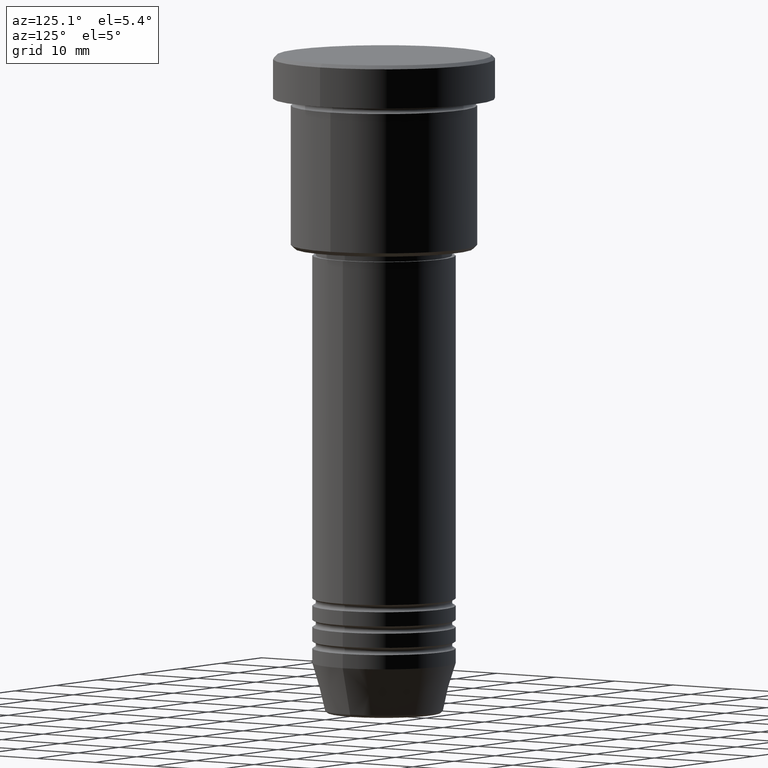
[diagram: clean part render]
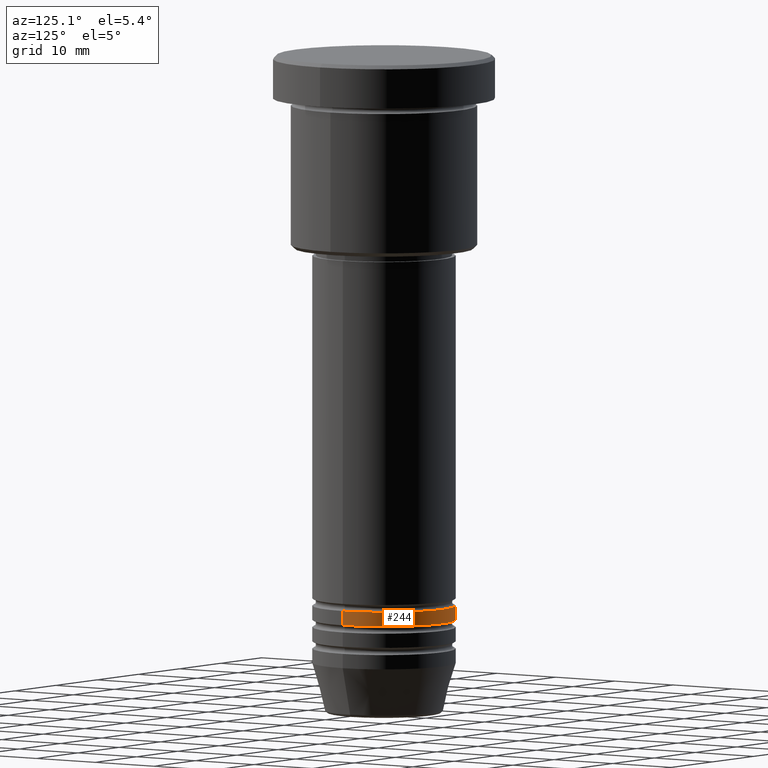
[diagram: same view with one face highlighted and labeled with its STEP entity id]
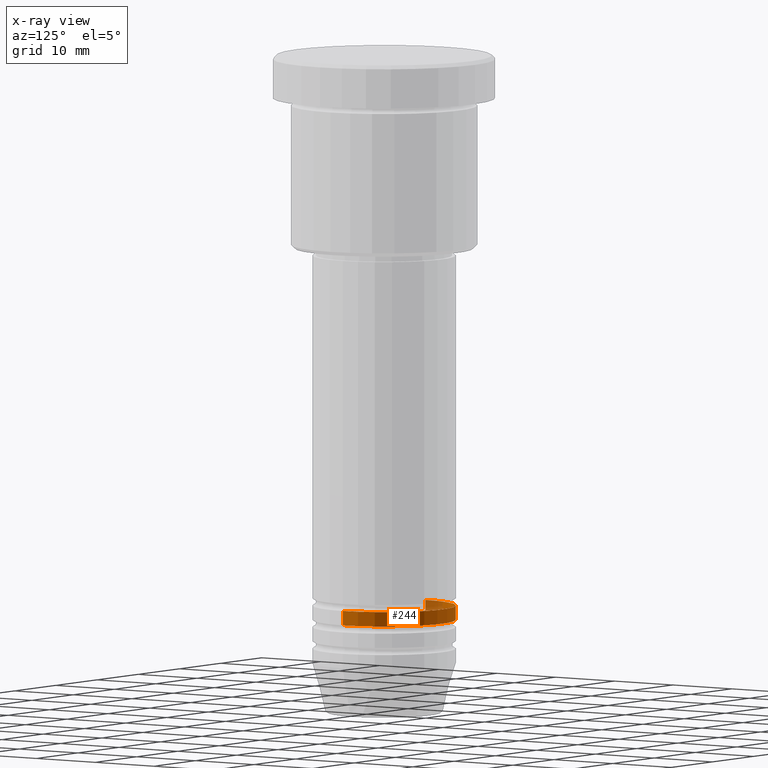
[diagram: x-ray of the same camera — body ghosted, the highlighted face saturated]
A machine part, auxiliary view. The second image highlights one B-rep face of the part: STEP entity #244.
The next image is the same camera in x-ray: the body ghosted, the highlighted face saturated — about 9% of this face is hidden behind the body in this view.
In plain terms, the highlighted cylindrical surface (partial cylindrical patch) has radius 10 mm, axis along (-0, -0, 1).
Its self-contained STEP definition (entity closure, byte-faithful):
#3 = CARTESIAN_POINT ( 'NONE',  ( 0.000000000000000000, 0.000000000000000000, -78.99999999999997158 ) ) ;
#19 = EDGE_LOOP ( 'NONE', ( #936, #391, #314, #404 ) ) ;
#40 = CARTESIAN_POINT ( 'NONE',  ( 10.00000000000000000, 0.000000000000000000, -76.99999999999997158 ) ) ;
#57 = VERTEX_POINT ( 'NONE', #1091 ) ;
#71 = DIRECTION ( 'NONE',  ( -0.000000000000000000, -0.000000000000000000, 1.000000000000000000 ) ) ;
#75 = DIRECTION ( 'NONE',  ( 1.000000000000000000, 0.000000000000000000, 0.000000000000000000 ) ) ;
#160 = CARTESIAN_POINT ( 'NONE',  ( 10.00000000000000000, 0.000000000000000000, 0.000000000000000000 ) ) ;
#169 = LINE ( 'NONE', #160, #627 ) ;
#244 = ADVANCED_FACE ( 'NONE', ( #521 ), #261, .T. ) ;
#261 = CYLINDRICAL_SURFACE ( 'NONE', #324, 10.00000000000000000 ) ;
#314 = ORIENTED_EDGE ( 'NONE', *, *, #914, .F. ) ;
#324 = AXIS2_PLACEMENT_3D ( 'NONE', #981, #71, #700 ) ;
#356 = CARTESIAN_POINT ( 'NONE',  ( -10.00000000000000000, 1.224646799147353256E-15, 0.000000000000000000 ) ) ;
#391 = ORIENTED_EDGE ( 'NONE', *, *, #939, .T. ) ;
#404 = ORIENTED_EDGE ( 'NONE', *, *, #1145, .F. ) ;
#412 = EDGE_CURVE ( 'NONE', #919, #57, #604, .T. ) ;
#431 = VERTEX_POINT ( 'NONE', #922 ) ;
#521 = FACE_OUTER_BOUND ( 'NONE', #19, .T. ) ;
#555 = DIRECTION ( 'NONE',  ( -0.000000000000000000, -0.000000000000000000, 1.000000000000000000 ) ) ;
#586 = CIRCLE ( 'NONE', #951, 10.00000000000000000 ) ;
#604 = CIRCLE ( 'NONE', #711, 10.00000000000000000 ) ;
#627 = VECTOR ( 'NONE', #888, 1000.000000000000000 ) ;
#661 = DIRECTION ( 'NONE',  ( 1.000000000000000000, 0.000000000000000000, 0.000000000000000000 ) ) ;
#679 = VECTOR ( 'NONE', #1176, 1000.000000000000000 ) ;
#700 = DIRECTION ( 'NONE',  ( 1.000000000000000000, 0.000000000000000000, 0.000000000000000000 ) ) ;
#711 = AXIS2_PLACEMENT_3D ( 'NONE', #3, #555, #661 ) ;
#888 = DIRECTION ( 'NONE',  ( -0.000000000000000000, -0.000000000000000000, 1.000000000000000000 ) ) ;
#904 = CARTESIAN_POINT ( 'NONE',  ( 10.00000000000000000, 0.000000000000000000, -78.99999999999997158 ) ) ;
#914 = EDGE_CURVE ( 'NONE', #1012, #431, #586, .T. ) ;
#919 = VERTEX_POINT ( 'NONE', #904 ) ;
#922 = CARTESIAN_POINT ( 'NONE',  ( -10.00000000000000000, 1.224646799147353256E-15, -76.99999999999997158 ) ) ;
#936 = ORIENTED_EDGE ( 'NONE', *, *, #412, .T. ) ;
#939 = EDGE_CURVE ( 'NONE', #57, #431, #1094, .T. ) ;
#951 = AXIS2_PLACEMENT_3D ( 'NONE', #1081, #1007, #75 ) ;
#981 = CARTESIAN_POINT ( 'NONE',  ( 0.000000000000000000, 0.000000000000000000, 0.000000000000000000 ) ) ;
#1007 = DIRECTION ( 'NONE',  ( -0.000000000000000000, -0.000000000000000000, 1.000000000000000000 ) ) ;
#1012 = VERTEX_POINT ( 'NONE', #40 ) ;
#1081 = CARTESIAN_POINT ( 'NONE',  ( 0.000000000000000000, 0.000000000000000000, -76.99999999999997158 ) ) ;
#1091 = CARTESIAN_POINT ( 'NONE',  ( -10.00000000000000000, 1.224646799147353256E-15, -78.99999999999997158 ) ) ;
#1094 = LINE ( 'NONE', #356, #679 ) ;
#1145 = EDGE_CURVE ( 'NONE', #919, #1012, #169, .T. ) ;
#1176 = DIRECTION ( 'NONE',  ( -0.000000000000000000, -0.000000000000000000, 1.000000000000000000 ) ) ;